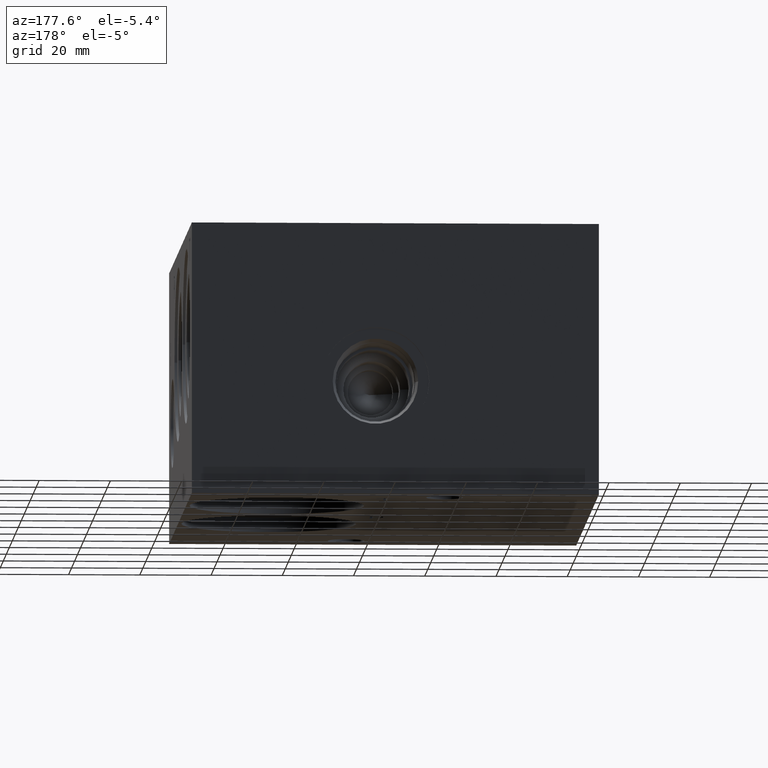
[diagram: clean part render]
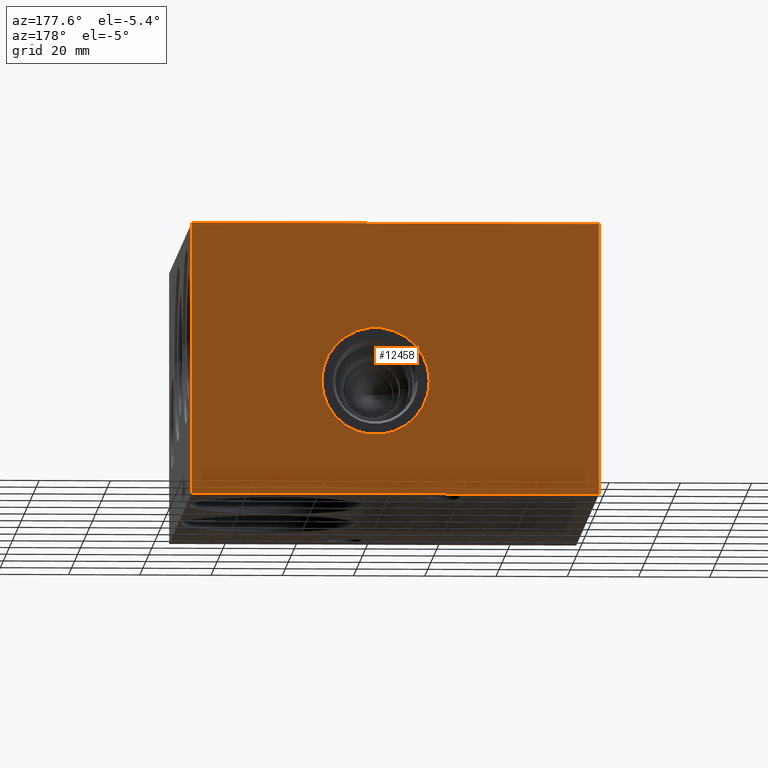
[diagram: same view with one face highlighted and labeled with its STEP entity id]
A machine part, auxiliary view. The second image highlights one B-rep face of the part: STEP entity #12458.
In plain terms, the highlighted planar face has unit normal (0, 1, 0).
Its self-contained STEP definition (entity closure, byte-faithful):
#309=CIRCLE('',#13054,15.08);
#310=CIRCLE('',#13055,15.08);
#500=FACE_BOUND('',#2223,.T.);
#861=PLANE('',#13223);
#1501=FACE_OUTER_BOUND('',#2222,.T.);
#2222=EDGE_LOOP('',(#11141,#11142,#11143,#11144));
#2223=EDGE_LOOP('',(#11145,#11146));
#2278=LINE('',#16058,#3395);
#2363=LINE('',#16379,#3480);
#3164=LINE('',#20472,#4281);
#3360=LINE('',#21704,#4477);
#3395=VECTOR('',#13284,10.);
#3480=VECTOR('',#13439,10.);
#4281=VECTOR('',#14754,10.);
#4477=VECTOR('',#15840,10.);
#4854=VERTEX_POINT('',#16055);
#4855=VERTEX_POINT('',#16057);
#4928=VERTEX_POINT('',#16378);
#5659=VERTEX_POINT('',#20470);
#5876=VERTEX_POINT('',#21360);
#5877=VERTEX_POINT('',#21361);
#6051=EDGE_CURVE('',#4855,#4854,#2278,.T.);
#6158=EDGE_CURVE('',#4855,#4928,#2363,.T.);
#7253=EDGE_CURVE('',#4854,#5659,#3164,.T.);
#7574=EDGE_CURVE('',#5876,#5877,#309,.T.);
#7575=EDGE_CURVE('',#5877,#5876,#310,.T.);
#7733=EDGE_CURVE('',#4928,#5659,#3360,.T.);
#11141=ORIENTED_EDGE('',*,*,#6051,.T.);
#11142=ORIENTED_EDGE('',*,*,#7253,.T.);
#11143=ORIENTED_EDGE('',*,*,#7733,.F.);
#11144=ORIENTED_EDGE('',*,*,#6158,.F.);
#11145=ORIENTED_EDGE('',*,*,#7574,.T.);
#11146=ORIENTED_EDGE('',*,*,#7575,.T.);
#12458=ADVANCED_FACE('',(#1501,#500),#861,.T.);
#13054=AXIS2_PLACEMENT_3D('',#21362,#15451,#15452);
#13055=AXIS2_PLACEMENT_3D('',#21363,#15453,#15454);
#13223=AXIS2_PLACEMENT_3D('',#21703,#15838,#15839);
#13284=DIRECTION('',(-1.,0.,0.));
#13439=DIRECTION('',(0.,0.,1.));
#14754=DIRECTION('',(0.,0.,1.));
#15451=DIRECTION('center_axis',(0.,-1.,0.));
#15452=DIRECTION('ref_axis',(1.,0.,0.));
#15453=DIRECTION('center_axis',(0.,-1.,0.));
#15454=DIRECTION('ref_axis',(1.,0.,0.));
#15838=DIRECTION('center_axis',(0.,1.,0.));
#15839=DIRECTION('ref_axis',(-1.,0.,0.));
#15840=DIRECTION('',(-1.,0.,0.));
#16055=CARTESIAN_POINT('',(0.,152.4,0.));
#16057=CARTESIAN_POINT('',(114.3,152.4,0.));
#16058=CARTESIAN_POINT('',(114.3,152.4,0.));
#16378=CARTESIAN_POINT('',(114.3,152.4,76.2));
#16379=CARTESIAN_POINT('',(114.3,152.4,0.));
#20470=CARTESIAN_POINT('',(0.,152.4,76.2));
#20472=CARTESIAN_POINT('',(0.,152.4,0.));
#21360=CARTESIAN_POINT('',(77.7926,152.4,31.75));
#21361=CARTESIAN_POINT('',(47.6326,152.4,31.75));
#21362=CARTESIAN_POINT('Origin',(62.7126,152.4,31.75));
#21363=CARTESIAN_POINT('Origin',(62.7126,152.4,31.75));
#21703=CARTESIAN_POINT('Origin',(114.3,152.4,0.));
#21704=CARTESIAN_POINT('',(114.3,152.4,76.2));